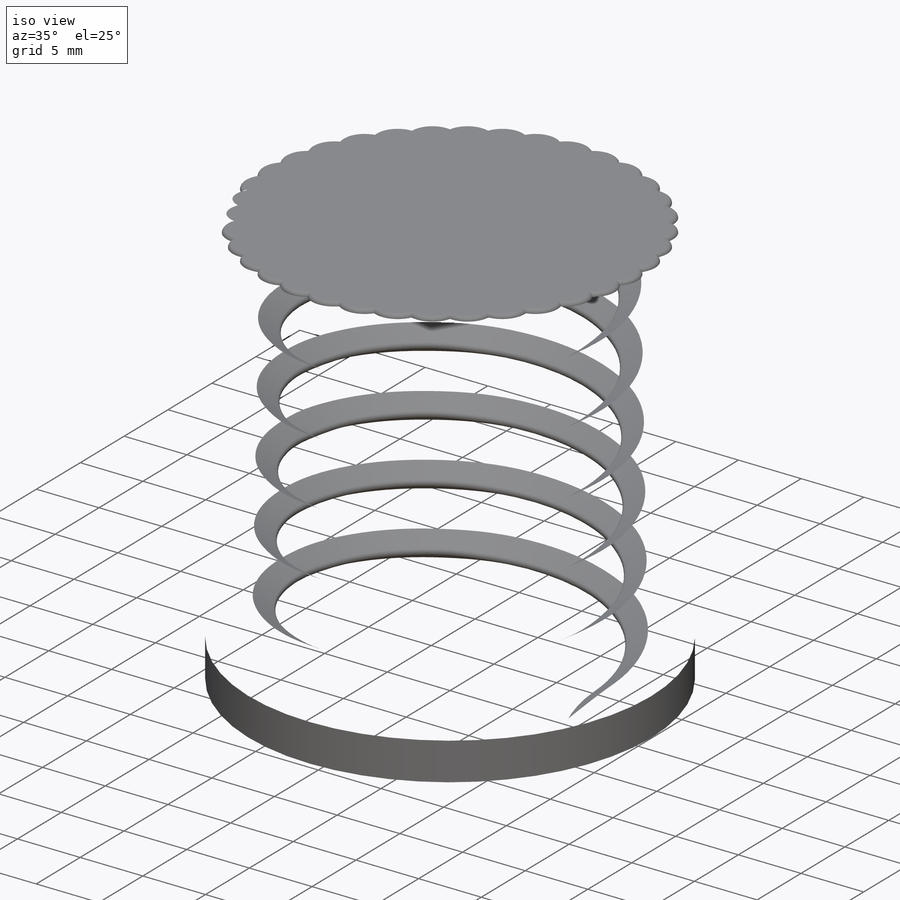
[diagram: iso view]
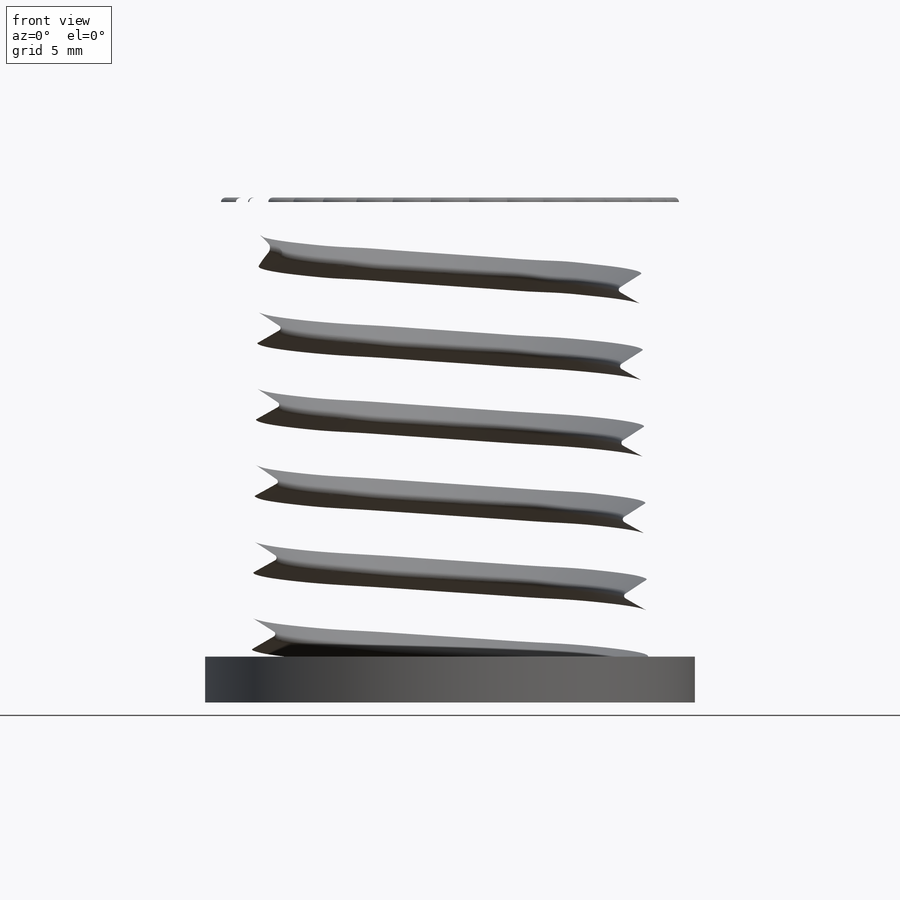
[diagram: front view]
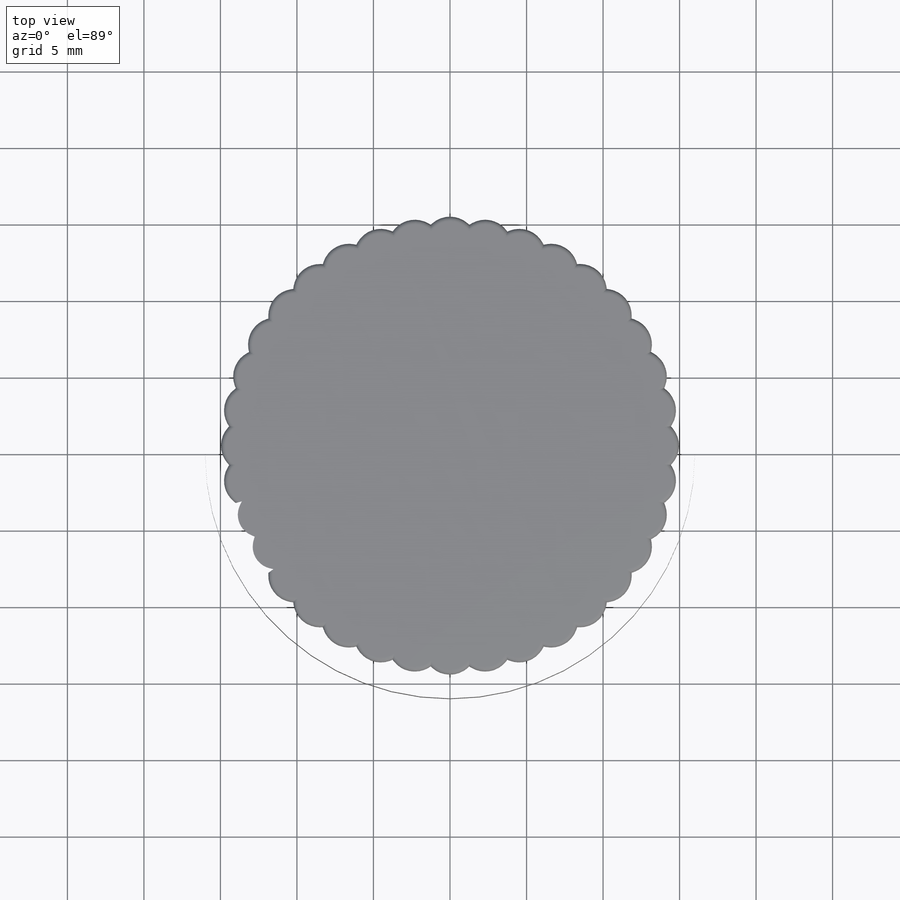
[diagram: top view]
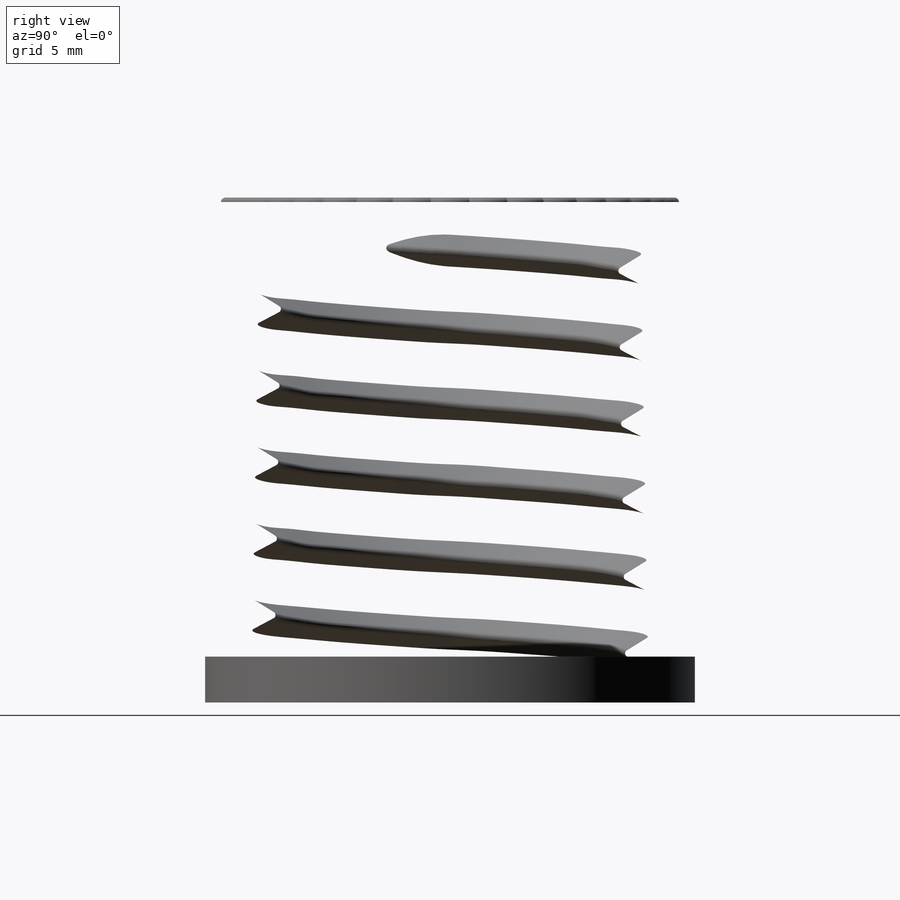
[diagram: right view]
SOLIDWORKS PART (.sldprt)
format: sldprt  version: not decoded by parser v0  size: 1,924,608 bytes
history: native  units: mm
features: sketch x12, plane x5, cut_revolve x3, material x1, revolve x1, cut_extrude x1, pattern_circular x1, fillet x1, sweep x1 + 2 further entries (+11 scaffold rows collapsed; 1 parser-record rows omitted)
feature tree (40):
  scaffold x11  (default folders/planes/origin — collapsed)
  material  "Material <nicht festgelegt>"
  plane  "XY"
  plane  "XZ"
  plane  "YZ"
  "Y"
  "Z"
  sketch  "AK"  dims[c1.D1=32.0mm c1.D2=30.0mm c1.D3=~28.952696mm c1.D4=3.0mm c1.D5=30.0mm c1.D6=0.5mm c1.D7=45.0mm c2.D7=89.0deg c2.D8=~29.917943mm c2.D9=~31.000163mm]
  revolve  "Rotation_AK"  Angle=10deg
  sketch  "Profil un"  dims[c1.D2=5.0mm c1.D3=5.0mm c1.D1=~80.126556mm c2.D1=10.0deg c2.D3=5.0mm c3.D1=3.0mm c3.D3=~9.017309mm c4.D3=~103.33075deg]
  plane  "AE_Spitze"
  sketch  "Spitze"
  sketch  "Skizze1"
  cut_extrude  "Schnitt-Lin_Oberseite"  Depth=10mm
  pattern_circular  "Kreismuster_Wulste"  Count=36 Angle=22.5deg
  fillet  "Verrundg_Oberseite"  Radius=0.3mm
  sketch  "IK"  dims[D1=26.0mm D2=1.5mm]
  cut_revolve  "Schnitt-Rotation_IK"  Angle=360deg
  sketch  "Profil Steigung"  dims[D1=2.0mm]
  sketch  "Höhe Steigung"  dims[D1=2.0mm D2=27.5mm]
  parser-record x1  (decoder bookkeeping rows leaked as tree rows — omitted from the tree; the rows remain in map.json)
  sketch  "Gew Bahn"
  plane  "AE_Gew Anfang"
  sketch  "Gew Profil"  dims[c1.D2=0.3mm c1.D1=0.2mm c1.D3=~1.241156mm c2.D3=60.0deg c2.D4=1.5mm c2.D5=10.0mm]
  cut_revolve  "Rotation_Gew Anfang"  [1 undecoded]
  sketch  "Gew Profil<3>"  dims[D1=180.0deg]
  sweep  "Austragung2"
  sketch  "Gew Profil ob"  dims[c1.D2=0.3mm c1.D1=0.2mm c1.D3=~1.241156mm c2.D3=60.0deg c2.D4=1.5mm c2.D5=10.0mm]
  cut_revolve  "Rotation2"  Angle=180deg
  sketch  "Schneiden_Gew Ende ob"
decode coverage: 14 of 20 modeling features carry decoded parameters; 2 rows unclassified (native names shown)
note: ~ marks probable driven/reference dimensions
note: 1 parameter value undecoded
note: suppression state not decoded; provenance and decode notes live in map.json
